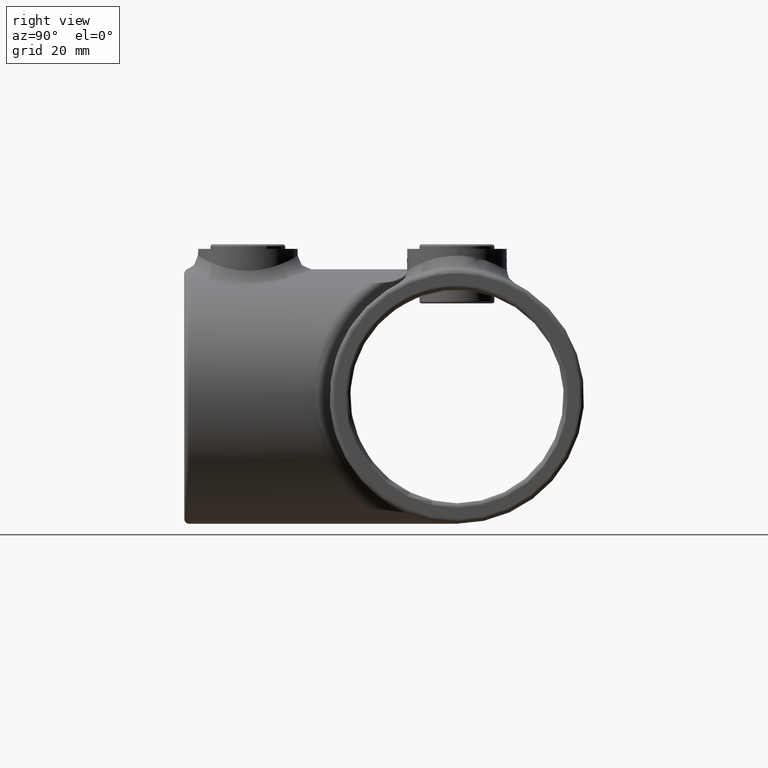
[diagram: clean part render]
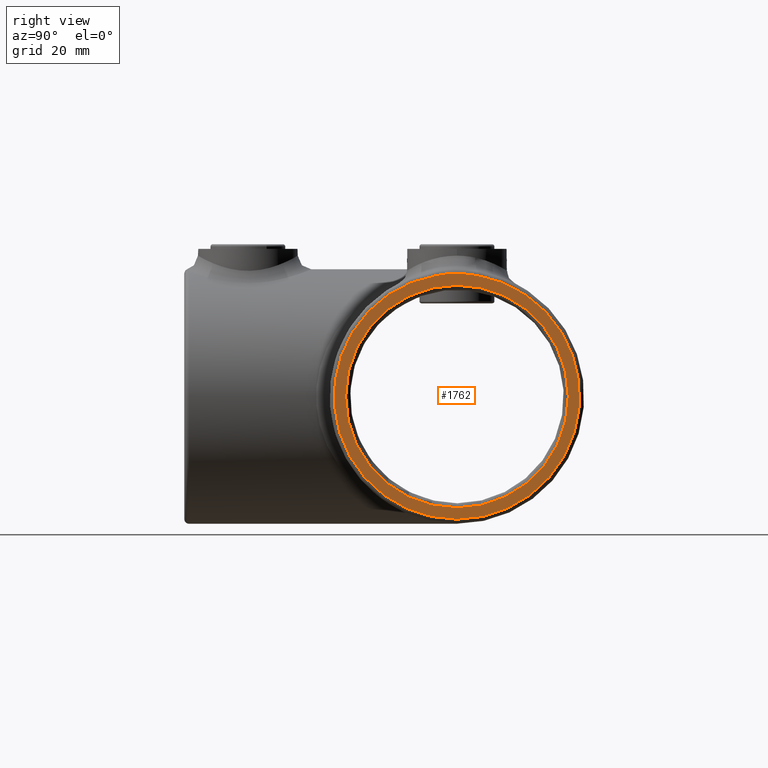
[diagram: same view with one face highlighted and labeled with its STEP entity id]
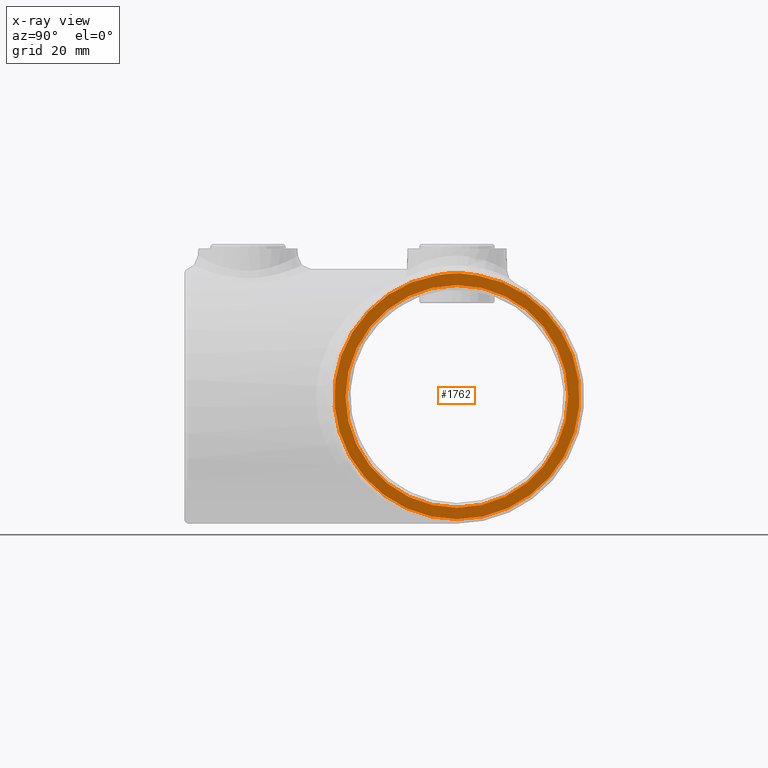
[diagram: x-ray of the same camera — body ghosted, the highlighted face saturated]
A machine part, right view. The second image highlights one B-rep face of the part: STEP entity #1762.
The next image is the same camera in x-ray: the body ghosted, the highlighted face saturated — about 0% of this face is hidden behind the body in this view.
In plain terms, the highlighted planar face has unit normal (1, 0, 0).
Its self-contained STEP definition (entity closure, byte-faithful):
#144 = FACE_OUTER_BOUND ( 'NONE', #769, .T. ) ;
#299 = ORIENTED_EDGE ( 'NONE', *, *, #2854, .T. ) ;
#317 = CARTESIAN_POINT ( 'NONE',  ( 60.00000000000000000, 61.49989684123373479, 27.07114500862799744 ) ) ;
#522 = ORIENTED_EDGE ( 'NONE', *, *, #2360, .T. ) ;
#570 = VERTEX_POINT ( 'NONE', #2304 ) ;
#769 = EDGE_LOOP ( 'NONE', ( #1311, #299 ) ) ;
#1056 = CARTESIAN_POINT ( 'NONE',  ( 60.00000000000000711, 58.48256421892502033, 27.06935990450943663 ) ) ;
#1086 = CARTESIAN_POINT ( 'NONE',  ( 60.00000000000000711, 63.01244478387832260, 26.88000358811528301 ) ) ;
#1101 = CARTESIAN_POINT ( 'NONE',  ( 60.00000000000001421, 56.22607744697874210, 26.74582185299649950 ) ) ;
#1311 = ORIENTED_EDGE ( 'NONE', *, *, #2985, .T. ) ;
#1459 = VERTEX_POINT ( 'NONE', #3991 ) ;
#1655 = DIRECTION ( 'NONE',  ( 1.000000000000000000, 0.000000000000000000, 0.000000000000000000 ) ) ;
#1762 = ADVANCED_FACE ( 'NONE', ( #144, #2262 ), #3412, .T. ) ;
#1827 = CARTESIAN_POINT ( 'NONE',  ( 60.00000000000000711, 56.97774131999535285, 26.87832418208418517 ) ) ;
#2040 = DIRECTION ( 'NONE',  ( 0.000000000000000000, 0.000000000000000000, -1.000000000000000000 ) ) ;
#2075 = CARTESIAN_POINT ( 'NONE',  ( 60.00000000000000000, 60.00000000000000000, 0.000000000000000000 ) ) ;
#2129 = DIRECTION ( 'NONE',  ( -1.000000000000000000, -0.000000000000000000, -0.000000000000000000 ) ) ;
#2262 = FACE_BOUND ( 'NONE', #4335, .T. ) ;
#2268 = AXIS2_PLACEMENT_3D ( 'NONE', #2075, #1655, #2040 ) ;
#2304 = CARTESIAN_POINT ( 'NONE',  ( 60.00000000000000000, 60.00000000000000000, -24.49999999999998934 ) ) ;
#2360 = EDGE_CURVE ( 'NONE', #570, #570, #4666, .T. ) ;
#2401 = B_SPLINE_CURVE_WITH_KNOTS ( 'NONE', 3,
 ( #2646, #2616, #1086, #317, #2981, #3773, #1056, #1827, #1101, #4189 ),
 .UNSPECIFIED., .F., .F.,
 ( 4, 2, 2, 2, 4 ),
 ( 0.000000000000000000, 0.002301418368029673096, 0.004602836736059324509, 0.006904255104088975921, 0.009205673472118628201 ),
 .UNSPECIFIED. ) ;
#2616 = CARTESIAN_POINT ( 'NONE',  ( 60.00000000000001421, 63.76939504154805149, 26.74659163544279750 ) ) ;
#2646 = CARTESIAN_POINT ( 'NONE',  ( 60.00000000000000000, 64.52568114237223540, 26.61800537601523331 ) ) ;
#2673 = DIRECTION ( 'NONE',  ( 0.000000000000000000, 0.000000000000000000, -1.000000000000000000 ) ) ;
#2854 = EDGE_CURVE ( 'NONE', #3911, #1459, #2401, .T. ) ;
#2981 = CARTESIAN_POINT ( 'NONE',  ( 59.99999999999999289, 60.74441584042001807, 27.12748549384038910 ) ) ;
#2985 = EDGE_CURVE ( 'NONE', #1459, #3911, #4143, .T. ) ;
#3412 = PLANE ( 'NONE',  #3585 ) ;
#3585 = AXIS2_PLACEMENT_3D ( 'NONE', #3783, #3833, #2673 ) ;
#3773 = CARTESIAN_POINT ( 'NONE',  ( 60.00000000000001421, 59.23575056686070894, 27.12654160937276870 ) ) ;
#3783 = CARTESIAN_POINT ( 'NONE',  ( 60.00000000000000000, 60.00000000000000000, 0.000000000000000000 ) ) ;
#3833 = DIRECTION ( 'NONE',  ( 1.000000000000000000, 0.000000000000000000, 0.000000000000000000 ) ) ;
#3911 = VERTEX_POINT ( 'NONE', #4216 ) ;
#3991 = CARTESIAN_POINT ( 'NONE',  ( 60.00000000000000000, 55.47431885764262205, 26.61800537601775929 ) ) ;
#4143 = CIRCLE ( 'NONE', #2268, 26.99999999999998934 ) ;
#4189 = CARTESIAN_POINT ( 'NONE',  ( 60.00000000000000000, 55.47431885764262205, 26.61800537601775929 ) ) ;
#4216 = CARTESIAN_POINT ( 'NONE',  ( 60.00000000000000000, 64.52568114237223540, 26.61800537601523331 ) ) ;
#4335 = EDGE_LOOP ( 'NONE', ( #522 ) ) ;
#4444 = CARTESIAN_POINT ( 'NONE',  ( 60.00000000000000000, 60.00000000000000000, 0.000000000000000000 ) ) ;
#4666 = CIRCLE ( 'NONE', #4917, 24.49999999999998934 ) ;
#4825 = DIRECTION ( 'NONE',  ( 0.000000000000000000, 0.000000000000000000, -1.000000000000000000 ) ) ;
#4917 = AXIS2_PLACEMENT_3D ( 'NONE', #4444, #2129, #4825 ) ;